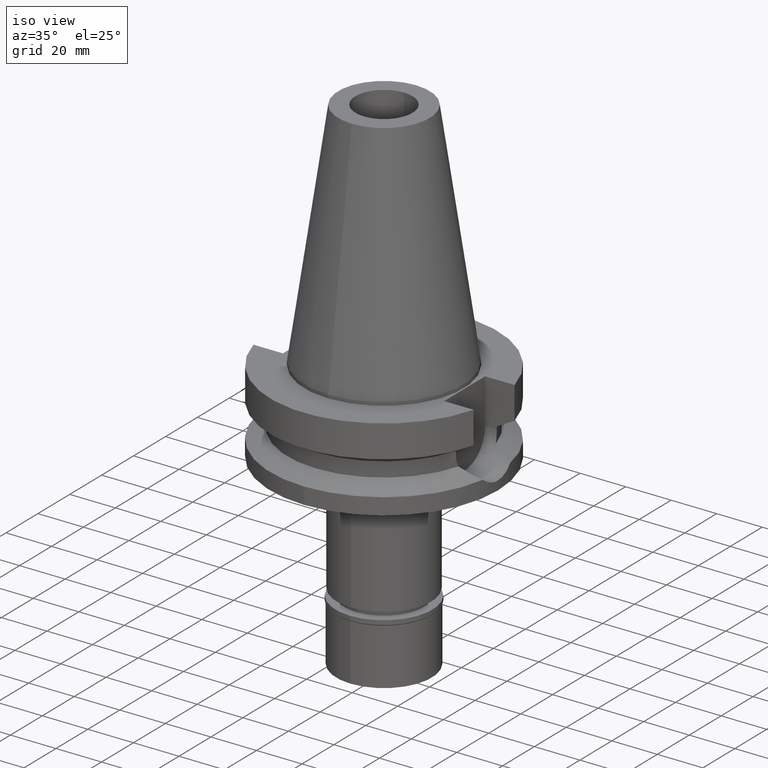
[diagram: clean part render]
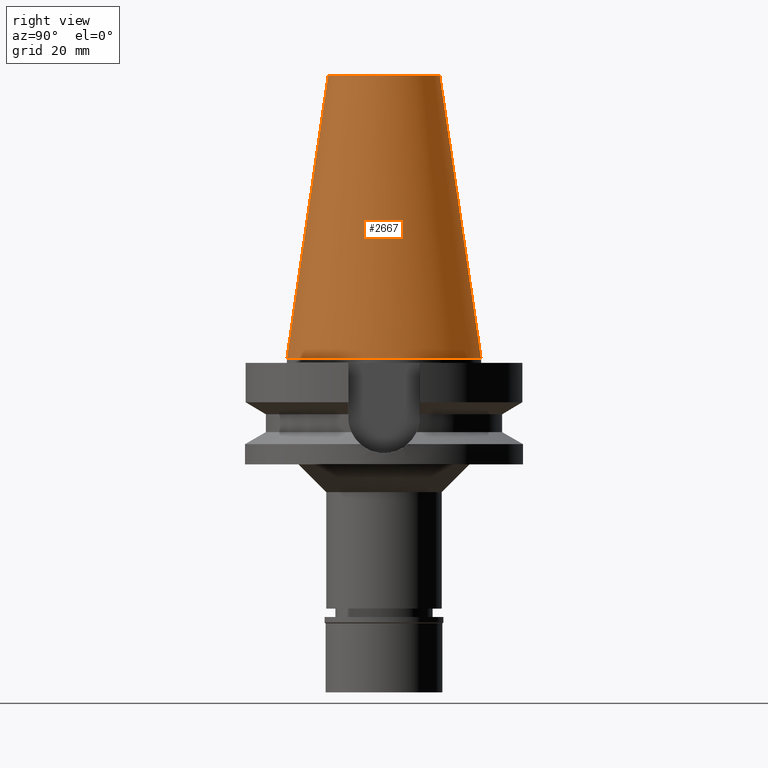
[diagram: tour spotlight — one face highlighted and labeled with its STEP entity id]
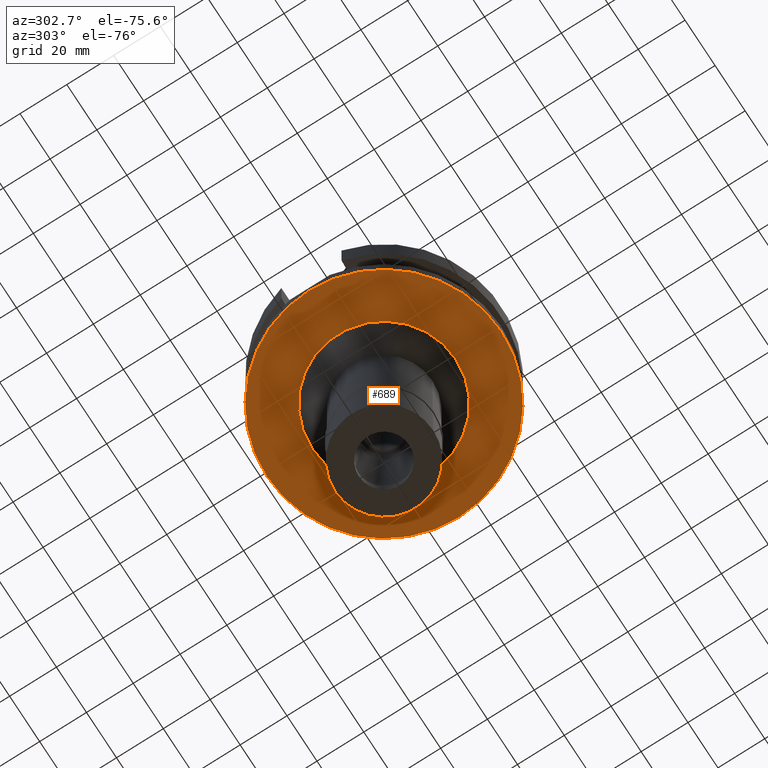
[diagram: tour spotlight — one face highlighted and labeled with its STEP entity id]
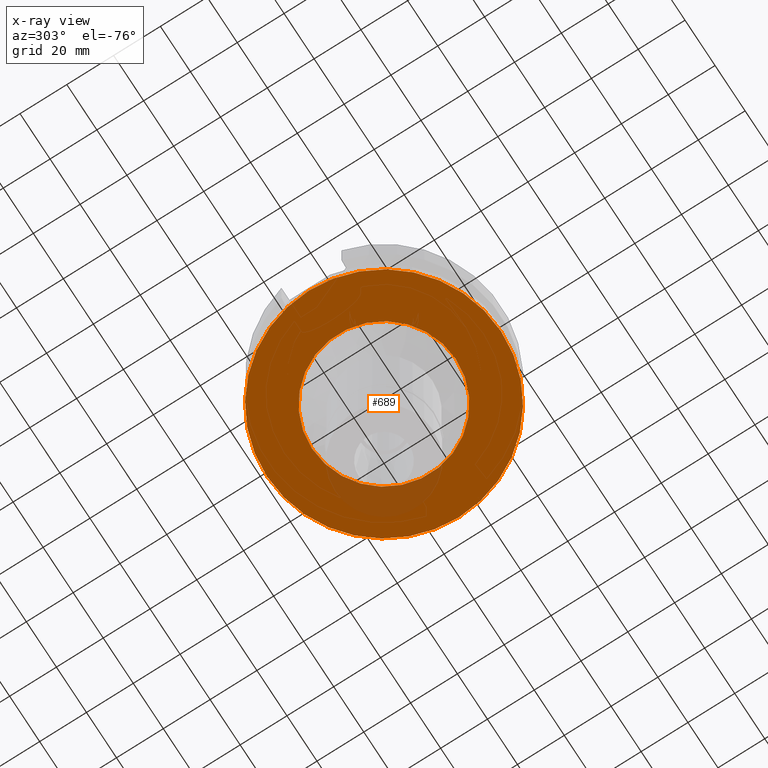
[diagram: x-ray of the same camera — body ghosted, this tour face saturated]
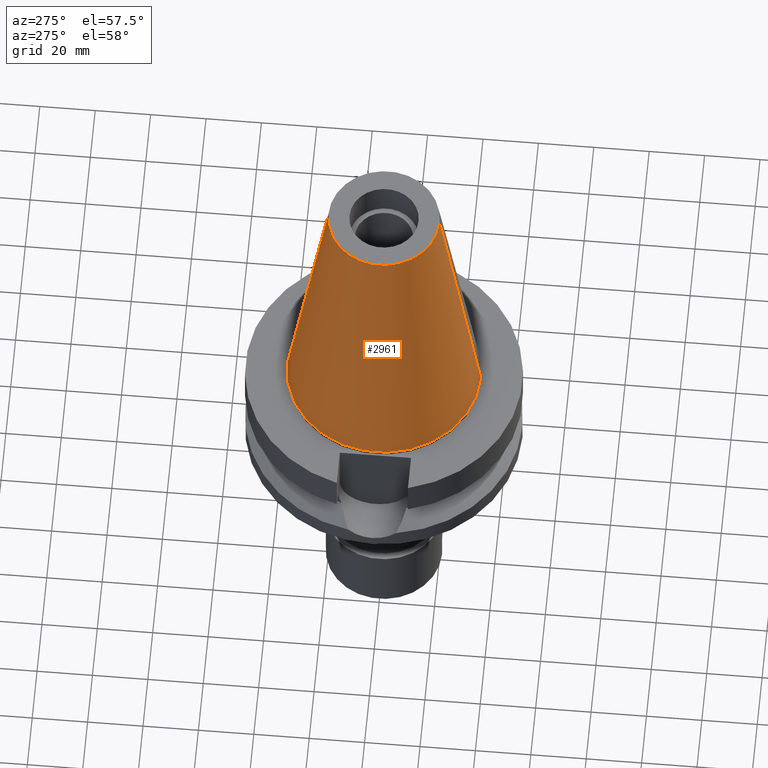
[diagram: tour spotlight — one face highlighted and labeled with its STEP entity id]
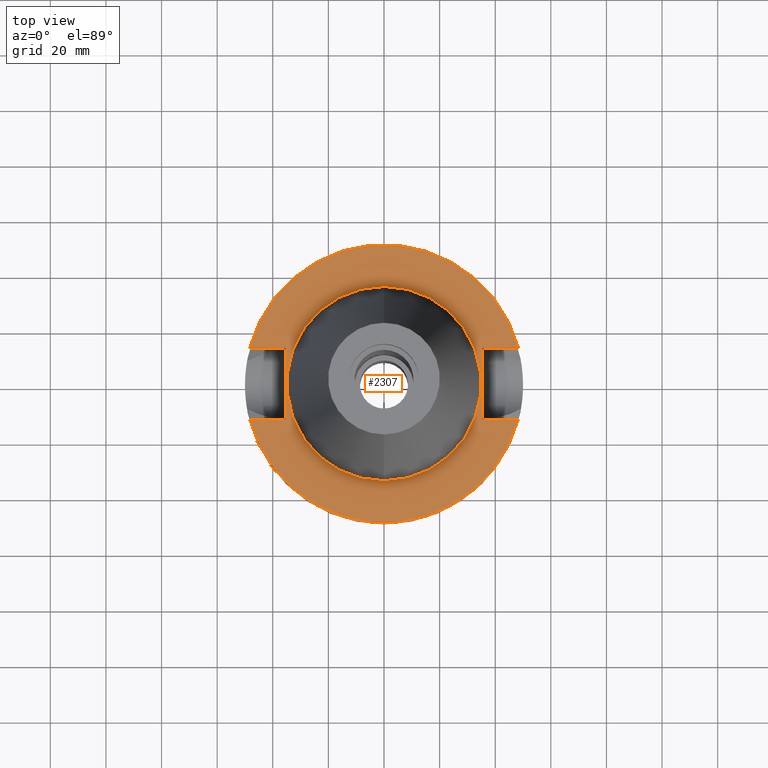
[diagram: tour spotlight — one face highlighted and labeled with its STEP entity id]
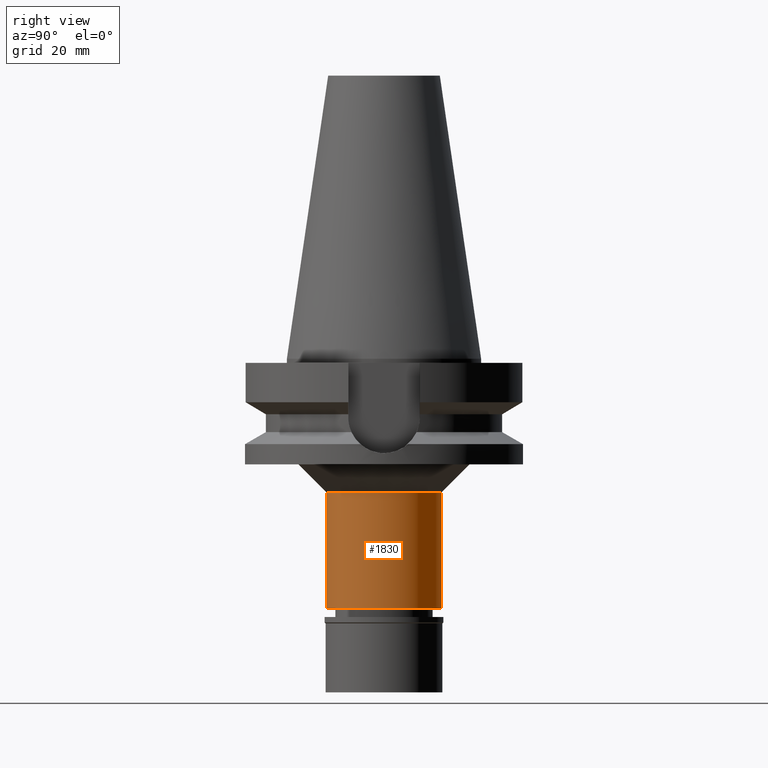
[diagram: tour spotlight — one face highlighted and labeled with its STEP entity id]
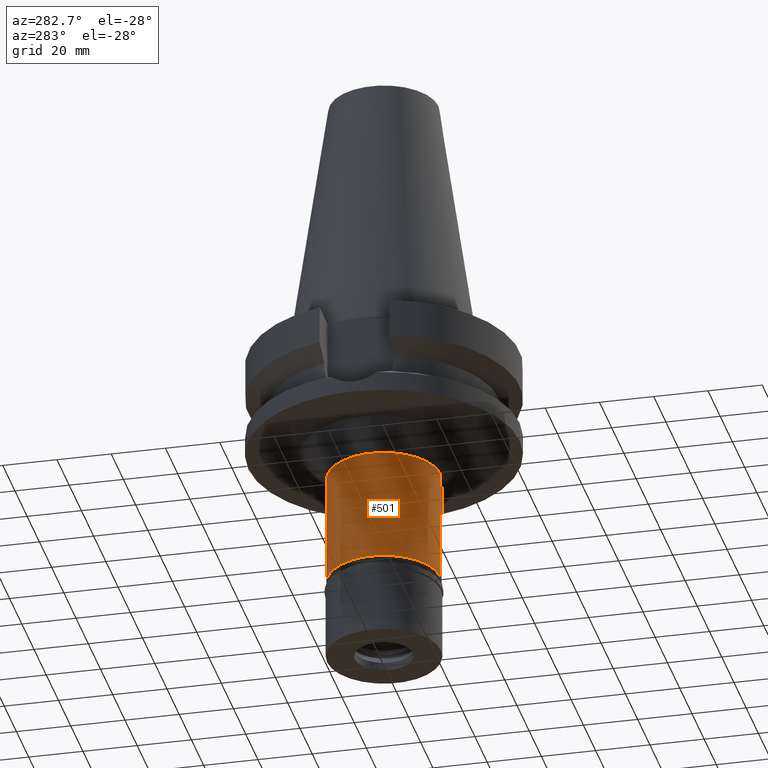
[diagram: tour spotlight — one face highlighted and labeled with its STEP entity id]
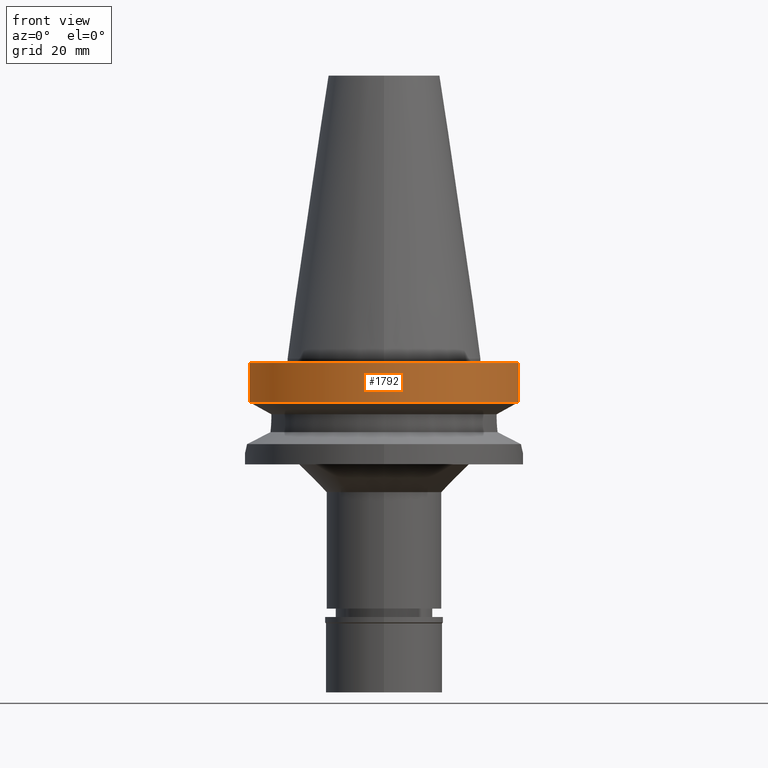
[diagram: tour spotlight — one face highlighted and labeled with its STEP entity id]
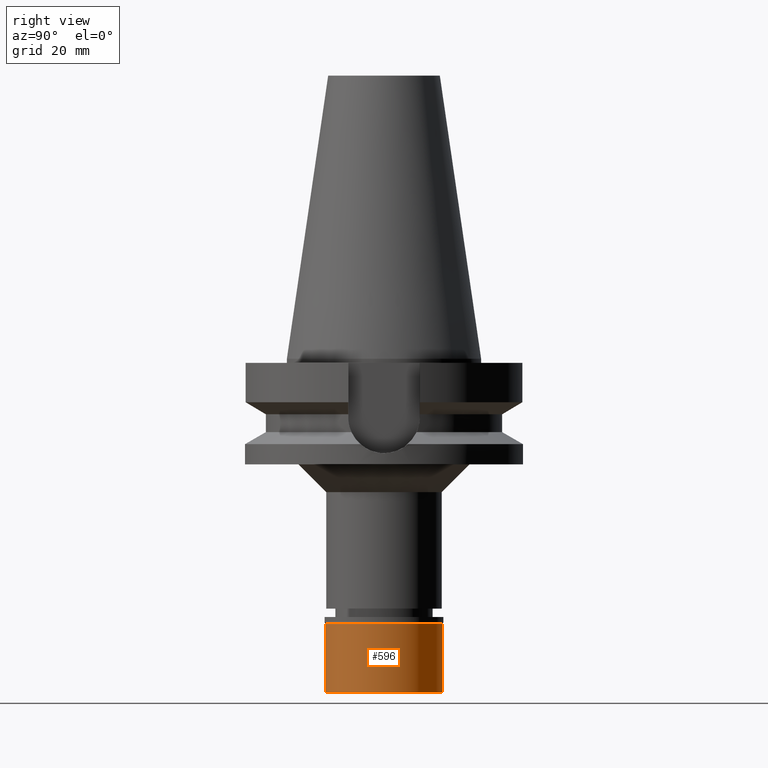
[diagram: tour spotlight — one face highlighted and labeled with its STEP entity id]
A machine part: a face-by-face anatomy tour. The part has 79 B-rep faces; the first image is the clean iso view, then the 8 largest visible faces are spotlighted one at a time (largest first), each with its STEP entity span.

Face 1 — right view, entity #2667. In plain terms, the highlighted conical surface has half-angle 8.297 deg.
Definition (entity closure, byte-faithful):
#11 = CARTESIAN_POINT ( 'NONE',  ( 0.0000000000000000000, 1.847992019912999597E-14, 50.89999999999999858 ) ) ;
#29 = AXIS2_PLACEMENT_3D ( 'NONE', #11, #1985, #2930 ) ;
#193 = DIRECTION ( 'NONE',  ( 0.0000000000000000000, 1.000000000000000000, 0.0000000000000000000 ) ) ;
#207 = CARTESIAN_POINT ( 'NONE',  ( 0.0000000000000000000, -20.07942971896000017, 101.7999999999999972 ) ) ;
#436 = CARTESIAN_POINT ( 'NONE',  ( 0.0000000000000000000, 34.92499999999999716, 4.192202140985000042E-13 ) ) ;
#528 = ORIENTED_EDGE ( 'NONE', *, *, #1447, .T. ) ;
#545 = VERTEX_POINT ( 'NONE', #2715 ) ;
#549 = CARTESIAN_POINT ( 'NONE',  ( 0.0000000000000000000, 20.07942971896000017, 101.7999999999999972 ) ) ;
#580 = CIRCLE ( 'NONE', #738, 20.07942971896000017 ) ;
#722 = LINE ( 'NONE', #2181, #3004 ) ;
#738 = AXIS2_PLACEMENT_3D ( 'NONE', #1383, #3107, #193 ) ;
#807 = DIRECTION ( 'NONE',  ( 0.0000000000000000000, 0.1443043893538948075, -0.9895333461855641000 ) ) ;
#824 = LINE ( 'NONE', #549, #1388 ) ;
#864 = DIRECTION ( 'NONE',  ( 0.0000000000000000000, 0.0000000000000000000, -1.000000000000000000 ) ) ;
#929 = ORIENTED_EDGE ( 'NONE', *, *, #1545, .F. ) ;
#1228 = EDGE_CURVE ( 'NONE', #1769, #1461, #3109, .T. ) ;
#1383 = CARTESIAN_POINT ( 'NONE',  ( 0.0000000000000000000, 1.847992019912999597E-14, 101.7999999999999972 ) ) ;
#1388 = VECTOR ( 'NONE', #807, 1000.000000000000114 ) ;
#1447 = EDGE_CURVE ( 'NONE', #2600, #1461, #722, .T. ) ;
#1461 = VERTEX_POINT ( 'NONE', #2139 ) ;
#1545 = EDGE_CURVE ( 'NONE', #545, #1769, #824, .T. ) ;
#1608 = DIRECTION ( 'NONE',  ( 0.0000000000000000000, 1.000000000000000000, 0.0000000000000000000 ) ) ;
#1693 = DIRECTION ( 'NONE',  ( 0.0000000000000000000, -0.1443043893538948075, -0.9895333461855641000 ) ) ;
#1743 = FACE_OUTER_BOUND ( 'NONE', #2026, .T. ) ;
#1769 = VERTEX_POINT ( 'NONE', #436 ) ;
#1811 = CONICAL_SURFACE ( 'NONE', #29, 27.50221485948000222, 0.1448099680379422438 ) ;
#1985 = DIRECTION ( 'NONE',  ( 0.0000000000000000000, 0.0000000000000000000, -1.000000000000000000 ) ) ;
#2026 = EDGE_LOOP ( 'NONE', ( #2753, #528, #2421, #929 ) ) ;
#2139 = CARTESIAN_POINT ( 'NONE',  ( 0.0000000000000000000, -34.92499999999999716, 4.192202140985000042E-13 ) ) ;
#2181 = CARTESIAN_POINT ( 'NONE',  ( 0.0000000000000000000, -20.07942971896000017, 101.7999999999999972 ) ) ;
#2421 = ORIENTED_EDGE ( 'NONE', *, *, #1228, .F. ) ;
#2498 = EDGE_CURVE ( 'NONE', #545, #2600, #580, .T. ) ;
#2600 = VERTEX_POINT ( 'NONE', #207 ) ;
#2667 = ADVANCED_FACE ( 'NONE', ( #1743 ), #1811, .T. ) ;
#2715 = CARTESIAN_POINT ( 'NONE',  ( 0.0000000000000000000, 20.07942971896000017, 101.7999999999999972 ) ) ;
#2752 = AXIS2_PLACEMENT_3D ( 'NONE', #3029, #864, #1608 ) ;
#2753 = ORIENTED_EDGE ( 'NONE', *, *, #2498, .T. ) ;
#2930 = DIRECTION ( 'NONE',  ( 0.0000000000000000000, -1.000000000000000000, 0.0000000000000000000 ) ) ;
#3004 = VECTOR ( 'NONE', #1693, 1000.000000000000114 ) ;
#3029 = CARTESIAN_POINT ( 'NONE',  ( 0.0000000000000000000, 1.847992019912999597E-14, 3.979039320256999774E-13 ) ) ;
#3107 = DIRECTION ( 'NONE',  ( 0.0000000000000000000, 0.0000000000000000000, -1.000000000000000000 ) ) ;
#3109 = CIRCLE ( 'NONE', #2752, 34.92499999999999716 ) ;

Face 2 — auxiliary view, entity #689. An x-ray twin of the same camera follows (body ghosted, this face saturated) — the face is partly hidden behind the body. In plain terms, the highlighted planar face has unit normal (0, 0, -1).
Definition (entity closure, byte-faithful):
#82 = DIRECTION ( 'NONE',  ( 0.0000000000000000000, 0.0000000000000000000, -1.000000000000000000 ) ) ;
#346 = CARTESIAN_POINT ( 'NONE',  ( 0.0000000000000000000, 0.0000000000000000000, -38.00000000000000000 ) ) ;
#439 = AXIS2_PLACEMENT_3D ( 'NONE', #1087, #2556, #1797 ) ;
#556 = ORIENTED_EDGE ( 'NONE', *, *, #791, .F. ) ;
#689 = ADVANCED_FACE ( 'NONE', ( #1548, #1109 ), #2531, .T. ) ;
#783 = AXIS2_PLACEMENT_3D ( 'NONE', #909, #2584, #1274 ) ;
#791 = EDGE_CURVE ( 'NONE', #1631, #836, #2607, .T. ) ;
#830 = DIRECTION ( 'NONE',  ( 0.0000000000000000000, -1.000000000000000000, 0.0000000000000000000 ) ) ;
#836 = VERTEX_POINT ( 'NONE', #1699 ) ;
#848 = DIRECTION ( 'NONE',  ( 0.0000000000000000000, 0.0000000000000000000, -1.000000000000000000 ) ) ;
#909 = CARTESIAN_POINT ( 'NONE',  ( 0.0000000000000000000, 2.600415013308999844E-14, -38.00000000000000000 ) ) ;
#984 = AXIS2_PLACEMENT_3D ( 'NONE', #2996, #848, #830 ) ;
#1087 = CARTESIAN_POINT ( 'NONE',  ( 0.0000000000000000000, 2.600415013308999844E-14, -38.00000000000000000 ) ) ;
#1094 = CARTESIAN_POINT ( 'NONE',  ( 0.0000000000000000000, 0.0000000000000000000, -38.00000000000000000 ) ) ;
#1109 = FACE_BOUND ( 'NONE', #1838, .T. ) ;
#1143 = AXIS2_PLACEMENT_3D ( 'NONE', #346, #2082, #2515 ) ;
#1244 = CARTESIAN_POINT ( 'NONE',  ( 0.0000000000000000000, -30.75000000000000000, -38.00000000000000000 ) ) ;
#1268 = ORIENTED_EDGE ( 'NONE', *, *, #1881, .F. ) ;
#1274 = DIRECTION ( 'NONE',  ( 0.0000000000000000000, -1.000000000000000000, 0.0000000000000000000 ) ) ;
#1286 = VERTEX_POINT ( 'NONE', #2167 ) ;
#1548 = FACE_OUTER_BOUND ( 'NONE', #2236, .T. ) ;
#1570 = ORIENTED_EDGE ( 'NONE', *, *, #2348, .F. ) ;
#1631 = VERTEX_POINT ( 'NONE', #1244 ) ;
#1699 = CARTESIAN_POINT ( 'NONE',  ( 0.0000000000000000000, 30.75000000000000000, -38.00000000000000000 ) ) ;
#1797 = DIRECTION ( 'NONE',  ( 0.0000000000000000000, 1.000000000000000000, 0.0000000000000000000 ) ) ;
#1816 = CARTESIAN_POINT ( 'NONE',  ( 0.0000000000000000000, 50.00000000000000000, -38.00000000000000000 ) ) ;
#1838 = EDGE_LOOP ( 'NONE', ( #1268, #556 ) ) ;
#1840 = AXIS2_PLACEMENT_3D ( 'NONE', #1094, #82, #2548 ) ;
#1881 = EDGE_CURVE ( 'NONE', #836, #1631, #1892, .T. ) ;
#1892 = CIRCLE ( 'NONE', #1840, 30.75000000000000000 ) ;
#2082 = DIRECTION ( 'NONE',  ( 0.0000000000000000000, 0.0000000000000000000, -1.000000000000000000 ) ) ;
#2117 = CIRCLE ( 'NONE', #783, 50.00000000000000000 ) ;
#2167 = CARTESIAN_POINT ( 'NONE',  ( 0.0000000000000000000, -50.00000000000000000, -38.00000000000000000 ) ) ;
#2236 = EDGE_LOOP ( 'NONE', ( #1570, #2858 ) ) ;
#2348 = EDGE_CURVE ( 'NONE', #2435, #1286, #2519, .T. ) ;
#2435 = VERTEX_POINT ( 'NONE', #1816 ) ;
#2515 = DIRECTION ( 'NONE',  ( 0.0000000000000000000, -1.000000000000000000, 0.0000000000000000000 ) ) ;
#2519 = CIRCLE ( 'NONE', #439, 50.00000000000000000 ) ;
#2531 = PLANE ( 'NONE',  #1143 ) ;
#2548 = DIRECTION ( 'NONE',  ( 0.0000000000000000000, 1.000000000000000000, 0.0000000000000000000 ) ) ;
#2556 = DIRECTION ( 'NONE',  ( 0.0000000000000000000, 0.0000000000000000000, 1.000000000000000000 ) ) ;
#2584 = DIRECTION ( 'NONE',  ( 0.0000000000000000000, 0.0000000000000000000, 1.000000000000000000 ) ) ;
#2607 = CIRCLE ( 'NONE', #984, 30.75000000000000000 ) ;
#2858 = ORIENTED_EDGE ( 'NONE', *, *, #2925, .F. ) ;
#2925 = EDGE_CURVE ( 'NONE', #1286, #2435, #2117, .T. ) ;
#2996 = CARTESIAN_POINT ( 'NONE',  ( 0.0000000000000000000, 0.0000000000000000000, -38.00000000000000000 ) ) ;

Face 3 — auxiliary view, entity #2961. In plain terms, the highlighted conical surface has half-angle 8.297 deg.
Definition (entity closure, byte-faithful):
#73 = AXIS2_PLACEMENT_3D ( 'NONE', #2413, #2684, #506 ) ;
#85 = EDGE_LOOP ( 'NONE', ( #1998, #369, #661, #2613 ) ) ;
#207 = CARTESIAN_POINT ( 'NONE',  ( 0.0000000000000000000, -20.07942971896000017, 101.7999999999999972 ) ) ;
#369 = ORIENTED_EDGE ( 'NONE', *, *, #1447, .F. ) ;
#386 = CONICAL_SURFACE ( 'NONE', #2163, 27.50221485948000222, 0.1448099680379422438 ) ;
#436 = CARTESIAN_POINT ( 'NONE',  ( 0.0000000000000000000, 34.92499999999999716, 4.192202140985000042E-13 ) ) ;
#460 = DIRECTION ( 'NONE',  ( 0.0000000000000000000, 0.0000000000000000000, -1.000000000000000000 ) ) ;
#506 = DIRECTION ( 'NONE',  ( 0.0000000000000000000, -1.000000000000000000, 0.0000000000000000000 ) ) ;
#545 = VERTEX_POINT ( 'NONE', #2715 ) ;
#549 = CARTESIAN_POINT ( 'NONE',  ( 0.0000000000000000000, 20.07942971896000017, 101.7999999999999972 ) ) ;
#661 = ORIENTED_EDGE ( 'NONE', *, *, #935, .T. ) ;
#722 = LINE ( 'NONE', #2181, #3004 ) ;
#777 = AXIS2_PLACEMENT_3D ( 'NONE', #1910, #460, #1199 ) ;
#788 = CARTESIAN_POINT ( 'NONE',  ( 0.0000000000000000000, 1.847992019912999597E-14, 50.89999999999999858 ) ) ;
#807 = DIRECTION ( 'NONE',  ( 0.0000000000000000000, 0.1443043893538948075, -0.9895333461855641000 ) ) ;
#824 = LINE ( 'NONE', #549, #1388 ) ;
#840 = EDGE_CURVE ( 'NONE', #1461, #1769, #2007, .T. ) ;
#935 = EDGE_CURVE ( 'NONE', #2600, #545, #2260, .T. ) ;
#1199 = DIRECTION ( 'NONE',  ( 0.0000000000000000000, -1.000000000000000000, 0.0000000000000000000 ) ) ;
#1388 = VECTOR ( 'NONE', #807, 1000.000000000000114 ) ;
#1447 = EDGE_CURVE ( 'NONE', #2600, #1461, #722, .T. ) ;
#1461 = VERTEX_POINT ( 'NONE', #2139 ) ;
#1545 = EDGE_CURVE ( 'NONE', #545, #1769, #824, .T. ) ;
#1693 = DIRECTION ( 'NONE',  ( 0.0000000000000000000, -0.1443043893538948075, -0.9895333461855641000 ) ) ;
#1769 = VERTEX_POINT ( 'NONE', #436 ) ;
#1910 = CARTESIAN_POINT ( 'NONE',  ( 0.0000000000000000000, 1.847992019912999597E-14, 101.7999999999999972 ) ) ;
#1998 = ORIENTED_EDGE ( 'NONE', *, *, #840, .F. ) ;
#2007 = CIRCLE ( 'NONE', #73, 34.92499999999999716 ) ;
#2139 = CARTESIAN_POINT ( 'NONE',  ( 0.0000000000000000000, -34.92499999999999716, 4.192202140985000042E-13 ) ) ;
#2163 = AXIS2_PLACEMENT_3D ( 'NONE', #788, #2964, #2569 ) ;
#2181 = CARTESIAN_POINT ( 'NONE',  ( 0.0000000000000000000, -20.07942971896000017, 101.7999999999999972 ) ) ;
#2240 = FACE_OUTER_BOUND ( 'NONE', #85, .T. ) ;
#2260 = CIRCLE ( 'NONE', #777, 20.07942971896000017 ) ;
#2413 = CARTESIAN_POINT ( 'NONE',  ( 0.0000000000000000000, 1.847992019912999597E-14, 3.979039320256999774E-13 ) ) ;
#2569 = DIRECTION ( 'NONE',  ( 0.0000000000000000000, -1.000000000000000000, 0.0000000000000000000 ) ) ;
#2600 = VERTEX_POINT ( 'NONE', #207 ) ;
#2613 = ORIENTED_EDGE ( 'NONE', *, *, #1545, .T. ) ;
#2684 = DIRECTION ( 'NONE',  ( 0.0000000000000000000, 0.0000000000000000000, -1.000000000000000000 ) ) ;
#2715 = CARTESIAN_POINT ( 'NONE',  ( 0.0000000000000000000, 20.07942971896000017, 101.7999999999999972 ) ) ;
#2961 = ADVANCED_FACE ( 'NONE', ( #2240 ), #386, .T. ) ;
#2964 = DIRECTION ( 'NONE',  ( 0.0000000000000000000, 0.0000000000000000000, -1.000000000000000000 ) ) ;
#3004 = VECTOR ( 'NONE', #1693, 1000.000000000000114 ) ;

Face 4 — top view, entity #2307. In plain terms, the highlighted planar face has unit normal (0, 0, -1).
Definition (entity closure, byte-faithful):
#45 = EDGE_CURVE ( 'NONE', #647, #2162, #940, .T. ) ;
#70 = VECTOR ( 'NONE', #598, 1000.000000000000000 ) ;
#123 = VECTOR ( 'NONE', #2158, 1000.000000000000000 ) ;
#227 = CIRCLE ( 'NONE', #1296, 34.92499999999999716 ) ;
#237 = EDGE_CURVE ( 'NONE', #856, #1222, #2070, .T. ) ;
#244 = DIRECTION ( 'NONE',  ( 0.0000000000000000000, -1.000000000000000000, 0.0000000000000000000 ) ) ;
#318 = EDGE_LOOP ( 'NONE', ( #882, #1880, #2371, #733, #2719, #2678, #910, #2403 ) ) ;
#393 = DIRECTION ( 'NONE',  ( 1.000000000000000000, 0.0000000000000000000, 0.0000000000000000000 ) ) ;
#473 = CARTESIAN_POINT ( 'NONE',  ( 0.0000000000000000000, 1.206277097159999845E-14, -1.500000000000000000 ) ) ;
#491 = DIRECTION ( 'NONE',  ( 0.0000000000000000000, 0.0000000000000000000, 1.000000000000000000 ) ) ;
#598 = DIRECTION ( 'NONE',  ( -1.000000000000000000, 0.0000000000000000000, 0.0000000000000000000 ) ) ;
#615 = VECTOR ( 'NONE', #1342, 1000.000000000000000 ) ;
#633 = CARTESIAN_POINT ( 'NONE',  ( -48.32057015392000210, -12.84999999999999964, -1.500000000000000000 ) ) ;
#647 = VERTEX_POINT ( 'NONE', #2577 ) ;
#652 = EDGE_CURVE ( 'NONE', #1049, #2055, #1820, .T. ) ;
#669 = VECTOR ( 'NONE', #753, 1000.000000000000000 ) ;
#733 = ORIENTED_EDGE ( 'NONE', *, *, #237, .F. ) ;
#753 = DIRECTION ( 'NONE',  ( 1.000000000000000000, 0.0000000000000000000, 0.0000000000000000000 ) ) ;
#767 = EDGE_CURVE ( 'NONE', #856, #2644, #2283, .T. ) ;
#837 = DIRECTION ( 'NONE',  ( 0.0000000000000000000, 0.0000000000000000000, 1.000000000000000000 ) ) ;
#847 = LINE ( 'NONE', #1819, #70 ) ;
#856 = VERTEX_POINT ( 'NONE', #2444 ) ;
#861 = EDGE_CURVE ( 'NONE', #2162, #647, #227, .T. ) ;
#882 = ORIENTED_EDGE ( 'NONE', *, *, #1183, .T. ) ;
#910 = ORIENTED_EDGE ( 'NONE', *, *, #652, .F. ) ;
#933 = LINE ( 'NONE', #2134, #2537 ) ;
#934 = AXIS2_PLACEMENT_3D ( 'NONE', #1063, #2295, #3031 ) ;
#940 = CIRCLE ( 'NONE', #2062, 34.92499999999999716 ) ;
#998 = EDGE_CURVE ( 'NONE', #1670, #1049, #933, .T. ) ;
#1049 = VERTEX_POINT ( 'NONE', #1528 ) ;
#1063 = CARTESIAN_POINT ( 'NONE',  ( 0.0000000000000000000, 2.600415013308999844E-14, -1.500000000000000000 ) ) ;
#1123 = CARTESIAN_POINT ( 'NONE',  ( -35.39999999999999858, 12.84999999999999964, -1.500000000000000000 ) ) ;
#1154 = DIRECTION ( 'NONE',  ( 0.0000000000000000000, -1.000000000000000000, 0.0000000000000000000 ) ) ;
#1183 = EDGE_CURVE ( 'NONE', #1670, #1785, #847, .T. ) ;
#1222 = VERTEX_POINT ( 'NONE', #2308 ) ;
#1296 = AXIS2_PLACEMENT_3D ( 'NONE', #3117, #491, #2173 ) ;
#1342 = DIRECTION ( 'NONE',  ( -1.000000000000000000, 0.0000000000000000000, 0.0000000000000000000 ) ) ;
#1363 = CARTESIAN_POINT ( 'NONE',  ( 0.0000000000000000000, 2.600415013308999844E-14, -1.500000000000000000 ) ) ;
#1449 = FACE_BOUND ( 'NONE', #2052, .T. ) ;
#1452 = CARTESIAN_POINT ( 'NONE',  ( 35.39999999999999858, 12.84999999999999964, -1.500000000000000000 ) ) ;
#1480 = PLANE ( 'NONE',  #2921 ) ;
#1528 = CARTESIAN_POINT ( 'NONE',  ( -35.39999999999999858, 12.84999999999999964, -1.500000000000000000 ) ) ;
#1624 = ORIENTED_EDGE ( 'NONE', *, *, #861, .F. ) ;
#1655 = EDGE_CURVE ( 'NONE', #1222, #2289, #2241, .T. ) ;
#1670 = VERTEX_POINT ( 'NONE', #2691 ) ;
#1689 = ORIENTED_EDGE ( 'NONE', *, *, #45, .F. ) ;
#1785 = VERTEX_POINT ( 'NONE', #633 ) ;
#1819 = CARTESIAN_POINT ( 'NONE',  ( -35.39999999999999858, -12.84999999999999964, -1.500000000000000000 ) ) ;
#1820 = LINE ( 'NONE', #1123, #615 ) ;
#1880 = ORIENTED_EDGE ( 'NONE', *, *, #2053, .F. ) ;
#1920 = EDGE_CURVE ( 'NONE', #2055, #2644, #2998, .T. ) ;
#2052 = EDGE_LOOP ( 'NONE', ( #1624, #1689 ) ) ;
#2053 = EDGE_CURVE ( 'NONE', #2289, #1785, #2746, .T. ) ;
#2055 = VERTEX_POINT ( 'NONE', #2610 ) ;
#2062 = AXIS2_PLACEMENT_3D ( 'NONE', #1363, #837, #2326 ) ;
#2070 = LINE ( 'NONE', #1452, #123 ) ;
#2134 = CARTESIAN_POINT ( 'NONE',  ( -35.39999999999999858, -12.84999999999999964, -1.500000000000000000 ) ) ;
#2158 = DIRECTION ( 'NONE',  ( 0.0000000000000000000, -1.000000000000000000, 0.0000000000000000000 ) ) ;
#2162 = VERTEX_POINT ( 'NONE', #2944 ) ;
#2173 = DIRECTION ( 'NONE',  ( 0.0000000000000000000, 1.000000000000000000, 0.0000000000000000000 ) ) ;
#2209 = CARTESIAN_POINT ( 'NONE',  ( 35.39999999999999858, -12.84999999999999964, -1.500000000000000000 ) ) ;
#2241 = LINE ( 'NONE', #2209, #669 ) ;
#2283 = LINE ( 'NONE', #2294, #2793 ) ;
#2289 = VERTEX_POINT ( 'NONE', #2426 ) ;
#2294 = CARTESIAN_POINT ( 'NONE',  ( 35.39999999999999858, 12.84999999999999964, -1.500000000000000000 ) ) ;
#2295 = DIRECTION ( 'NONE',  ( 0.0000000000000000000, 0.0000000000000000000, -1.000000000000000000 ) ) ;
#2307 = ADVANCED_FACE ( 'NONE', ( #2649, #1449 ), #1480, .F. ) ;
#2308 = CARTESIAN_POINT ( 'NONE',  ( 35.39999999999999858, -12.84999999999999964, -1.500000000000000000 ) ) ;
#2326 = DIRECTION ( 'NONE',  ( 0.0000000000000000000, -1.000000000000000000, 0.0000000000000000000 ) ) ;
#2371 = ORIENTED_EDGE ( 'NONE', *, *, #1655, .F. ) ;
#2403 = ORIENTED_EDGE ( 'NONE', *, *, #998, .F. ) ;
#2410 = DIRECTION ( 'NONE',  ( 0.0000000000000000000, 0.0000000000000000000, -1.000000000000000000 ) ) ;
#2426 = CARTESIAN_POINT ( 'NONE',  ( 48.32057015392000210, -12.84999999999999964, -1.500000000000000000 ) ) ;
#2444 = CARTESIAN_POINT ( 'NONE',  ( 35.39999999999999858, 12.84999999999999964, -1.500000000000000000 ) ) ;
#2537 = VECTOR ( 'NONE', #3087, 1000.000000000000000 ) ;
#2577 = CARTESIAN_POINT ( 'NONE',  ( 0.0000000000000000000, -34.92499999999999716, -1.500000000000000000 ) ) ;
#2591 = DIRECTION ( 'NONE',  ( 0.0000000000000000000, 0.0000000000000000000, -1.000000000000000000 ) ) ;
#2610 = CARTESIAN_POINT ( 'NONE',  ( -48.32057015392000210, 12.84999999999999964, -1.500000000000000000 ) ) ;
#2644 = VERTEX_POINT ( 'NONE', #2893 ) ;
#2649 = FACE_OUTER_BOUND ( 'NONE', #318, .T. ) ;
#2678 = ORIENTED_EDGE ( 'NONE', *, *, #1920, .F. ) ;
#2691 = CARTESIAN_POINT ( 'NONE',  ( -35.39999999999999858, -12.84999999999999964, -1.500000000000000000 ) ) ;
#2719 = ORIENTED_EDGE ( 'NONE', *, *, #767, .T. ) ;
#2746 = CIRCLE ( 'NONE', #3105, 50.00000000000000000 ) ;
#2793 = VECTOR ( 'NONE', #393, 1000.000000000000000 ) ;
#2851 = CARTESIAN_POINT ( 'NONE',  ( 0.0000000000000000000, 2.600415013308999844E-14, -1.500000000000000000 ) ) ;
#2893 = CARTESIAN_POINT ( 'NONE',  ( 48.32057015392000210, 12.84999999999999964, -1.500000000000000000 ) ) ;
#2921 = AXIS2_PLACEMENT_3D ( 'NONE', #473, #2410, #244 ) ;
#2944 = CARTESIAN_POINT ( 'NONE',  ( 0.0000000000000000000, 34.92499999999999716, -1.500000000000000000 ) ) ;
#2998 = CIRCLE ( 'NONE', #934, 50.00000000000000000 ) ;
#3031 = DIRECTION ( 'NONE',  ( 0.0000000000000000000, 1.000000000000000000, 0.0000000000000000000 ) ) ;
#3087 = DIRECTION ( 'NONE',  ( 0.0000000000000000000, 1.000000000000000000, 0.0000000000000000000 ) ) ;
#3105 = AXIS2_PLACEMENT_3D ( 'NONE', #2851, #2591, #1154 ) ;
#3117 = CARTESIAN_POINT ( 'NONE',  ( 0.0000000000000000000, 2.600415013308999844E-14, -1.500000000000000000 ) ) ;

Face 5 — right view, entity #1830. In plain terms, the highlighted cylindrical surface (partial cylindrical patch) has radius 20.75 mm, axis along (0, 0, -1).
Definition (entity closure, byte-faithful):
#142 = CARTESIAN_POINT ( 'NONE',  ( 0.0000000000000000000, -20.75000000000000000, -48.00000000000000000 ) ) ;
#195 = LINE ( 'NONE', #2881, #1036 ) ;
#273 = DIRECTION ( 'NONE',  ( 0.0000000000000000000, 1.000000000000000000, 0.0000000000000000000 ) ) ;
#566 = CIRCLE ( 'NONE', #2202, 20.75000000000000000 ) ;
#592 = EDGE_LOOP ( 'NONE', ( #3134, #1869, #2036, #3021 ) ) ;
#667 = AXIS2_PLACEMENT_3D ( 'NONE', #1315, #1578, #2565 ) ;
#704 = DIRECTION ( 'NONE',  ( 0.0000000000000000000, 0.0000000000000000000, -1.000000000000000000 ) ) ;
#904 = FACE_OUTER_BOUND ( 'NONE', #592, .T. ) ;
#953 = CARTESIAN_POINT ( 'NONE',  ( 0.0000000000000000000, 20.75000000000000000, -48.00000000000000000 ) ) ;
#1036 = VECTOR ( 'NONE', #704, 1000.000000000000000 ) ;
#1315 = CARTESIAN_POINT ( 'NONE',  ( 0.0000000000000000000, 2.600415013308999844E-14, 112.3399999999999892 ) ) ;
#1338 = CIRCLE ( 'NONE', #1794, 20.75000000000000000 ) ;
#1423 = EDGE_CURVE ( 'NONE', #2733, #2275, #195, .T. ) ;
#1578 = DIRECTION ( 'NONE',  ( 0.0000000000000000000, 0.0000000000000000000, -1.000000000000000000 ) ) ;
#1610 = DIRECTION ( 'NONE',  ( 0.0000000000000000000, 0.0000000000000000000, 1.000000000000000000 ) ) ;
#1630 = EDGE_CURVE ( 'NONE', #2733, #2419, #566, .T. ) ;
#1641 = VERTEX_POINT ( 'NONE', #2475 ) ;
#1652 = VECTOR ( 'NONE', #1764, 1000.000000000000000 ) ;
#1679 = CARTESIAN_POINT ( 'NONE',  ( 0.0000000000000000000, 20.75000000000000000, -89.89999999999999147 ) ) ;
#1764 = DIRECTION ( 'NONE',  ( 0.0000000000000000000, 0.0000000000000000000, -1.000000000000000000 ) ) ;
#1794 = AXIS2_PLACEMENT_3D ( 'NONE', #1907, #1610, #2578 ) ;
#1830 = ADVANCED_FACE ( 'NONE', ( #904 ), #2097, .T. ) ;
#1869 = ORIENTED_EDGE ( 'NONE', *, *, #2383, .T. ) ;
#1907 = CARTESIAN_POINT ( 'NONE',  ( 0.0000000000000000000, 2.600415013308999844E-14, -89.89999999999999147 ) ) ;
#2027 = EDGE_CURVE ( 'NONE', #1641, #2275, #1338, .T. ) ;
#2036 = ORIENTED_EDGE ( 'NONE', *, *, #2027, .T. ) ;
#2097 = CYLINDRICAL_SURFACE ( 'NONE', #667, 20.75000000000000000 ) ;
#2202 = AXIS2_PLACEMENT_3D ( 'NONE', #2966, #2440, #273 ) ;
#2275 = VERTEX_POINT ( 'NONE', #1679 ) ;
#2383 = EDGE_CURVE ( 'NONE', #2419, #1641, #2725, .T. ) ;
#2419 = VERTEX_POINT ( 'NONE', #142 ) ;
#2440 = DIRECTION ( 'NONE',  ( 0.0000000000000000000, 0.0000000000000000000, -1.000000000000000000 ) ) ;
#2475 = CARTESIAN_POINT ( 'NONE',  ( 0.0000000000000000000, -20.75000000000000000, -89.89999999999999147 ) ) ;
#2510 = CARTESIAN_POINT ( 'NONE',  ( 0.0000000000000000000, -20.75000000000000000, -48.00000000000000000 ) ) ;
#2565 = DIRECTION ( 'NONE',  ( 0.0000000000000000000, -1.000000000000000000, 0.0000000000000000000 ) ) ;
#2578 = DIRECTION ( 'NONE',  ( 0.0000000000000000000, -1.000000000000000000, 0.0000000000000000000 ) ) ;
#2725 = LINE ( 'NONE', #2510, #1652 ) ;
#2733 = VERTEX_POINT ( 'NONE', #953 ) ;
#2881 = CARTESIAN_POINT ( 'NONE',  ( 0.0000000000000000000, 20.75000000000000000, -48.00000000000000000 ) ) ;
#2966 = CARTESIAN_POINT ( 'NONE',  ( 0.0000000000000000000, 0.0000000000000000000, -48.00000000000000000 ) ) ;
#3021 = ORIENTED_EDGE ( 'NONE', *, *, #1423, .F. ) ;
#3134 = ORIENTED_EDGE ( 'NONE', *, *, #1630, .T. ) ;

Face 6 — auxiliary view, entity #501. In plain terms, the highlighted cylindrical surface (partial cylindrical patch) has radius 20.75 mm, axis along (0, 0, -1).
Definition (entity closure, byte-faithful):
#142 = CARTESIAN_POINT ( 'NONE',  ( 0.0000000000000000000, -20.75000000000000000, -48.00000000000000000 ) ) ;
#195 = LINE ( 'NONE', #2881, #1036 ) ;
#427 = AXIS2_PLACEMENT_3D ( 'NONE', #1023, #1529, #759 ) ;
#501 = ADVANCED_FACE ( 'NONE', ( #1732 ), #2696, .T. ) ;
#704 = DIRECTION ( 'NONE',  ( 0.0000000000000000000, 0.0000000000000000000, -1.000000000000000000 ) ) ;
#705 = CARTESIAN_POINT ( 'NONE',  ( 0.0000000000000000000, 2.600415013308999844E-14, -89.89999999999999147 ) ) ;
#716 = ORIENTED_EDGE ( 'NONE', *, *, #1053, .T. ) ;
#755 = DIRECTION ( 'NONE',  ( 0.0000000000000000000, 1.000000000000000000, 0.0000000000000000000 ) ) ;
#759 = DIRECTION ( 'NONE',  ( 0.0000000000000000000, -1.000000000000000000, 0.0000000000000000000 ) ) ;
#769 = AXIS2_PLACEMENT_3D ( 'NONE', #705, #2476, #755 ) ;
#953 = CARTESIAN_POINT ( 'NONE',  ( 0.0000000000000000000, 20.75000000000000000, -48.00000000000000000 ) ) ;
#1012 = EDGE_LOOP ( 'NONE', ( #1443, #2268, #716, #1556 ) ) ;
#1023 = CARTESIAN_POINT ( 'NONE',  ( 0.0000000000000000000, 2.600415013308999844E-14, 112.3399999999999892 ) ) ;
#1036 = VECTOR ( 'NONE', #704, 1000.000000000000000 ) ;
#1053 = EDGE_CURVE ( 'NONE', #2419, #2733, #1289, .T. ) ;
#1090 = AXIS2_PLACEMENT_3D ( 'NONE', #1313, #1295, #2714 ) ;
#1289 = CIRCLE ( 'NONE', #1090, 20.75000000000000000 ) ;
#1295 = DIRECTION ( 'NONE',  ( 0.0000000000000000000, 0.0000000000000000000, -1.000000000000000000 ) ) ;
#1313 = CARTESIAN_POINT ( 'NONE',  ( 0.0000000000000000000, 0.0000000000000000000, -48.00000000000000000 ) ) ;
#1423 = EDGE_CURVE ( 'NONE', #2733, #2275, #195, .T. ) ;
#1443 = ORIENTED_EDGE ( 'NONE', *, *, #2223, .T. ) ;
#1529 = DIRECTION ( 'NONE',  ( 0.0000000000000000000, 0.0000000000000000000, -1.000000000000000000 ) ) ;
#1556 = ORIENTED_EDGE ( 'NONE', *, *, #1423, .T. ) ;
#1641 = VERTEX_POINT ( 'NONE', #2475 ) ;
#1652 = VECTOR ( 'NONE', #1764, 1000.000000000000000 ) ;
#1679 = CARTESIAN_POINT ( 'NONE',  ( 0.0000000000000000000, 20.75000000000000000, -89.89999999999999147 ) ) ;
#1732 = FACE_OUTER_BOUND ( 'NONE', #1012, .T. ) ;
#1764 = DIRECTION ( 'NONE',  ( 0.0000000000000000000, 0.0000000000000000000, -1.000000000000000000 ) ) ;
#2223 = EDGE_CURVE ( 'NONE', #2275, #1641, #2647, .T. ) ;
#2268 = ORIENTED_EDGE ( 'NONE', *, *, #2383, .F. ) ;
#2275 = VERTEX_POINT ( 'NONE', #1679 ) ;
#2383 = EDGE_CURVE ( 'NONE', #2419, #1641, #2725, .T. ) ;
#2419 = VERTEX_POINT ( 'NONE', #142 ) ;
#2475 = CARTESIAN_POINT ( 'NONE',  ( 0.0000000000000000000, -20.75000000000000000, -89.89999999999999147 ) ) ;
#2476 = DIRECTION ( 'NONE',  ( 0.0000000000000000000, 0.0000000000000000000, 1.000000000000000000 ) ) ;
#2510 = CARTESIAN_POINT ( 'NONE',  ( 0.0000000000000000000, -20.75000000000000000, -48.00000000000000000 ) ) ;
#2647 = CIRCLE ( 'NONE', #769, 20.75000000000000000 ) ;
#2696 = CYLINDRICAL_SURFACE ( 'NONE', #427, 20.75000000000000000 ) ;
#2714 = DIRECTION ( 'NONE',  ( 0.0000000000000000000, -1.000000000000000000, 0.0000000000000000000 ) ) ;
#2725 = LINE ( 'NONE', #2510, #1652 ) ;
#2733 = VERTEX_POINT ( 'NONE', #953 ) ;
#2881 = CARTESIAN_POINT ( 'NONE',  ( 0.0000000000000000000, 20.75000000000000000, -48.00000000000000000 ) ) ;

Face 7 — front view, entity #1792. In plain terms, the highlighted cylindrical surface (partial cylindrical patch) has radius 50 mm, axis along (0, 0, -1).
Definition (entity closure, byte-faithful):
#151 = DIRECTION ( 'NONE',  ( 0.0000000000000000000, 0.0000000000000000000, -1.000000000000000000 ) ) ;
#188 = ORIENTED_EDGE ( 'NONE', *, *, #2942, .T. ) ;
#353 = ORIENTED_EDGE ( 'NONE', *, *, #2053, .T. ) ;
#434 = CARTESIAN_POINT ( 'NONE',  ( -48.32056912889000699, -12.85000385446000060, -15.66265770775999933 ) ) ;
#446 = DIRECTION ( 'NONE',  ( -7.238806269779711005E-08, -2.722046852994890557E-07, -0.9999999999999603650 ) ) ;
#463 = LINE ( 'NONE', #1203, #1552 ) ;
#633 = CARTESIAN_POINT ( 'NONE',  ( -48.32057015392000210, -12.84999999999999964, -1.500000000000000000 ) ) ;
#781 = EDGE_LOOP ( 'NONE', ( #838, #188, #1787, #353 ) ) ;
#838 = ORIENTED_EDGE ( 'NONE', *, *, #3077, .F. ) ;
#983 = AXIS2_PLACEMENT_3D ( 'NONE', #1362, #151, #2114 ) ;
#1154 = DIRECTION ( 'NONE',  ( 0.0000000000000000000, -1.000000000000000000, 0.0000000000000000000 ) ) ;
#1167 = LINE ( 'NONE', #1397, #1959 ) ;
#1195 = AXIS2_PLACEMENT_3D ( 'NONE', #2072, #2490, #2812 ) ;
#1203 = CARTESIAN_POINT ( 'NONE',  ( -48.32056912889000699, -12.85000385446000060, -15.66265770775999933 ) ) ;
#1362 = CARTESIAN_POINT ( 'NONE',  ( 0.0000000000000000000, 2.600415013308999844E-14, 112.3399999999999892 ) ) ;
#1397 = CARTESIAN_POINT ( 'NONE',  ( 48.32057015392000210, -12.84999999999999964, -1.500000000000000000 ) ) ;
#1538 = VERTEX_POINT ( 'NONE', #2278 ) ;
#1552 = VECTOR ( 'NONE', #2630, 1000.000000000000114 ) ;
#1596 = CYLINDRICAL_SURFACE ( 'NONE', #983, 50.00000000000000000 ) ;
#1785 = VERTEX_POINT ( 'NONE', #633 ) ;
#1787 = ORIENTED_EDGE ( 'NONE', *, *, #2541, .F. ) ;
#1792 = ADVANCED_FACE ( 'NONE', ( #2351 ), #1596, .T. ) ;
#1959 = VECTOR ( 'NONE', #446, 1000.000000000000114 ) ;
#2053 = EDGE_CURVE ( 'NONE', #2289, #1785, #2746, .T. ) ;
#2068 = VERTEX_POINT ( 'NONE', #434 ) ;
#2072 = CARTESIAN_POINT ( 'NONE',  ( 0.0000000000000000000, 1.006319759053999930E-14, -15.66269223573000069 ) ) ;
#2114 = DIRECTION ( 'NONE',  ( 0.0000000000000000000, -1.000000000000000000, 0.0000000000000000000 ) ) ;
#2278 = CARTESIAN_POINT ( 'NONE',  ( 48.32057015392000210, -12.84999999999999964, -15.66269223573000069 ) ) ;
#2289 = VERTEX_POINT ( 'NONE', #2426 ) ;
#2351 = FACE_OUTER_BOUND ( 'NONE', #781, .T. ) ;
#2426 = CARTESIAN_POINT ( 'NONE',  ( 48.32057015392000210, -12.84999999999999964, -1.500000000000000000 ) ) ;
#2490 = DIRECTION ( 'NONE',  ( 0.0000000000000000000, 0.0000000000000000000, 1.000000000000000000 ) ) ;
#2541 = EDGE_CURVE ( 'NONE', #2289, #1538, #1167, .T. ) ;
#2591 = DIRECTION ( 'NONE',  ( 0.0000000000000000000, 0.0000000000000000000, -1.000000000000000000 ) ) ;
#2630 = DIRECTION ( 'NONE',  ( -7.237533700689712736E-08, 2.721568302547890575E-07, 0.9999999999999603650 ) ) ;
#2705 = CIRCLE ( 'NONE', #1195, 50.00000000000000000 ) ;
#2746 = CIRCLE ( 'NONE', #3105, 50.00000000000000000 ) ;
#2812 = DIRECTION ( 'NONE',  ( 0.0000000000000000000, -1.000000000000000000, 0.0000000000000000000 ) ) ;
#2851 = CARTESIAN_POINT ( 'NONE',  ( 0.0000000000000000000, 2.600415013308999844E-14, -1.500000000000000000 ) ) ;
#2942 = EDGE_CURVE ( 'NONE', #2068, #1538, #2705, .T. ) ;
#3077 = EDGE_CURVE ( 'NONE', #2068, #1785, #463, .T. ) ;
#3105 = AXIS2_PLACEMENT_3D ( 'NONE', #2851, #2591, #1154 ) ;

Face 8 — right view, entity #596. In plain terms, the highlighted cylindrical surface (partial cylindrical patch) has radius 21 mm, axis along (0, 0, -1).
Definition (entity closure, byte-faithful):
#25 = EDGE_LOOP ( 'NONE', ( #1182, #889, #3020, #1051 ) ) ;
#46 = CARTESIAN_POINT ( 'NONE',  ( 0.0000000000000000000, 0.0000000000000000000, -27.09999999999999787 ) ) ;
#568 = DIRECTION ( 'NONE',  ( 0.0000000000000000000, -1.000000000000000000, 0.0000000000000000000 ) ) ;
#595 = DIRECTION ( 'NONE',  ( 0.0000000000000000000, 0.0000000000000000000, -1.000000000000000000 ) ) ;
#596 = ADVANCED_FACE ( 'NONE', ( #1483 ), #1976, .T. ) ;
#671 = AXIS2_PLACEMENT_3D ( 'NONE', #879, #1848, #568 ) ;
#682 = AXIS2_PLACEMENT_3D ( 'NONE', #1058, #595, #1324 ) ;
#736 = AXIS2_PLACEMENT_3D ( 'NONE', #46, #751, #966 ) ;
#751 = DIRECTION ( 'NONE',  ( 0.0000000000000000000, 0.0000000000000000000, 1.000000000000000000 ) ) ;
#879 = CARTESIAN_POINT ( 'NONE',  ( 0.0000000000000000000, 0.0000000000000000000, 0.0000000000000000000 ) ) ;
#880 = DIRECTION ( 'NONE',  ( 0.0000000000000000000, 0.0000000000000000000, -1.000000000000000000 ) ) ;
#889 = ORIENTED_EDGE ( 'NONE', *, *, #1075, .T. ) ;
#926 = CARTESIAN_POINT ( 'NONE',  ( 0.0000000000000000000, 21.00000000000000000, -2.299999999999999822 ) ) ;
#966 = DIRECTION ( 'NONE',  ( 0.0000000000000000000, -1.000000000000000000, 0.0000000000000000000 ) ) ;
#996 = CIRCLE ( 'NONE', #682, 21.00000000000000000 ) ;
#1022 = LINE ( 'NONE', #1076, #1489 ) ;
#1051 = ORIENTED_EDGE ( 'NONE', *, *, #1912, .F. ) ;
#1058 = CARTESIAN_POINT ( 'NONE',  ( 0.0000000000000000000, 0.0000000000000000000, -2.299999999999999822 ) ) ;
#1075 = EDGE_CURVE ( 'NONE', #2177, #1681, #1022, .T. ) ;
#1076 = CARTESIAN_POINT ( 'NONE',  ( 0.0000000000000000000, -21.00000000000000000, -2.299999999999999822 ) ) ;
#1182 = ORIENTED_EDGE ( 'NONE', *, *, #2345, .T. ) ;
#1213 = CARTESIAN_POINT ( 'NONE',  ( 0.0000000000000000000, -21.00000000000000000, -2.299999999999999822 ) ) ;
#1237 = VECTOR ( 'NONE', #880, 1000.000000000000000 ) ;
#1300 = CARTESIAN_POINT ( 'NONE',  ( 0.0000000000000000000, 21.00000000000000000, -2.299999999999999822 ) ) ;
#1324 = DIRECTION ( 'NONE',  ( 0.0000000000000000000, 1.000000000000000000, 0.0000000000000000000 ) ) ;
#1419 = VERTEX_POINT ( 'NONE', #926 ) ;
#1483 = FACE_OUTER_BOUND ( 'NONE', #25, .T. ) ;
#1489 = VECTOR ( 'NONE', #1515, 1000.000000000000000 ) ;
#1515 = DIRECTION ( 'NONE',  ( 0.0000000000000000000, 0.0000000000000000000, -1.000000000000000000 ) ) ;
#1681 = VERTEX_POINT ( 'NONE', #2303 ) ;
#1848 = DIRECTION ( 'NONE',  ( 0.0000000000000000000, 0.0000000000000000000, -1.000000000000000000 ) ) ;
#1912 = EDGE_CURVE ( 'NONE', #1419, #2489, #2323, .T. ) ;
#1976 = CYLINDRICAL_SURFACE ( 'NONE', #671, 21.00000000000000000 ) ;
#2177 = VERTEX_POINT ( 'NONE', #1213 ) ;
#2303 = CARTESIAN_POINT ( 'NONE',  ( 0.0000000000000000000, -21.00000000000000000, -27.09999999999999787 ) ) ;
#2323 = LINE ( 'NONE', #1300, #1237 ) ;
#2345 = EDGE_CURVE ( 'NONE', #1419, #2177, #996, .T. ) ;
#2489 = VERTEX_POINT ( 'NONE', #2588 ) ;
#2588 = CARTESIAN_POINT ( 'NONE',  ( 0.0000000000000000000, 21.00000000000000000, -27.09999999999999787 ) ) ;
#2712 = EDGE_CURVE ( 'NONE', #1681, #2489, #3018, .T. ) ;
#3018 = CIRCLE ( 'NONE', #736, 21.00000000000000000 ) ;
#3020 = ORIENTED_EDGE ( 'NONE', *, *, #2712, .T. ) ;